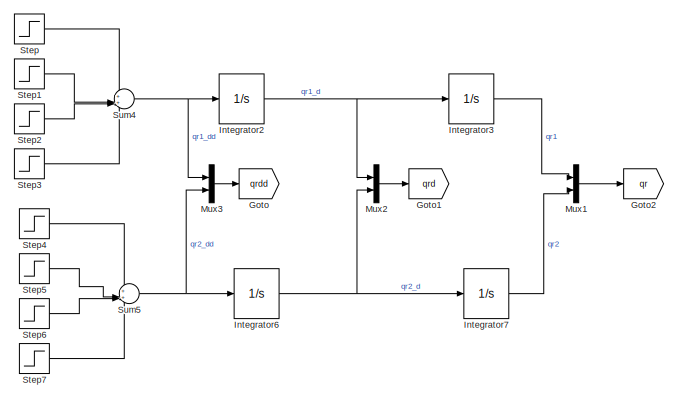
[diagram: root canvas - part 1/2, middle left region]
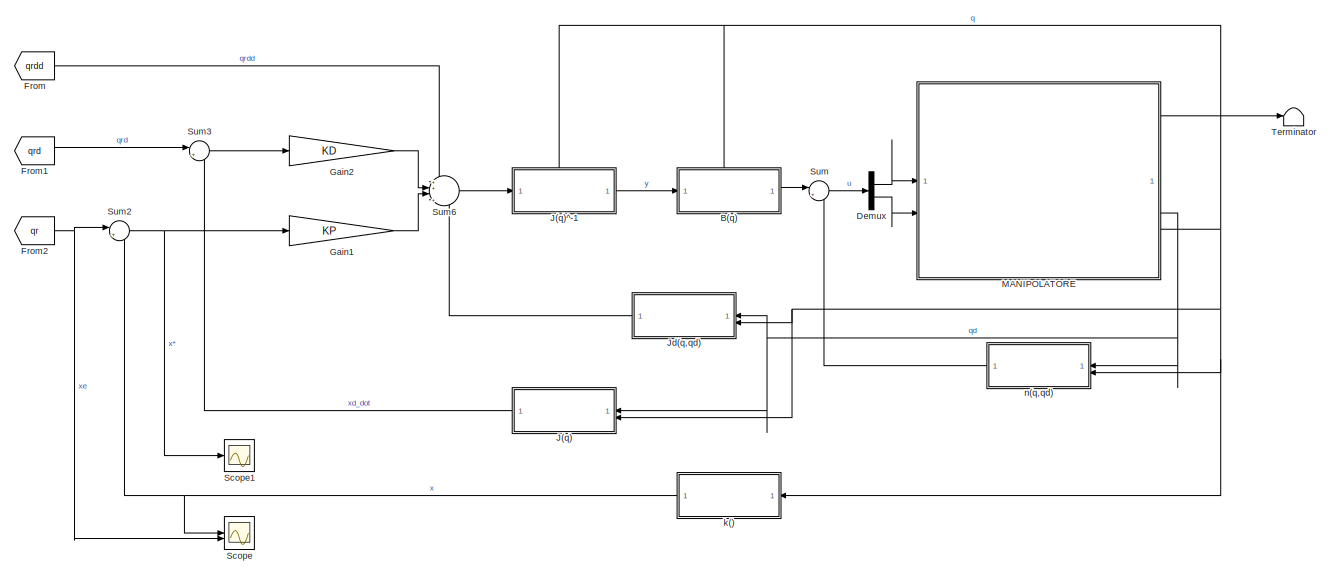
[diagram: root canvas - part 2/2, right side, full height]
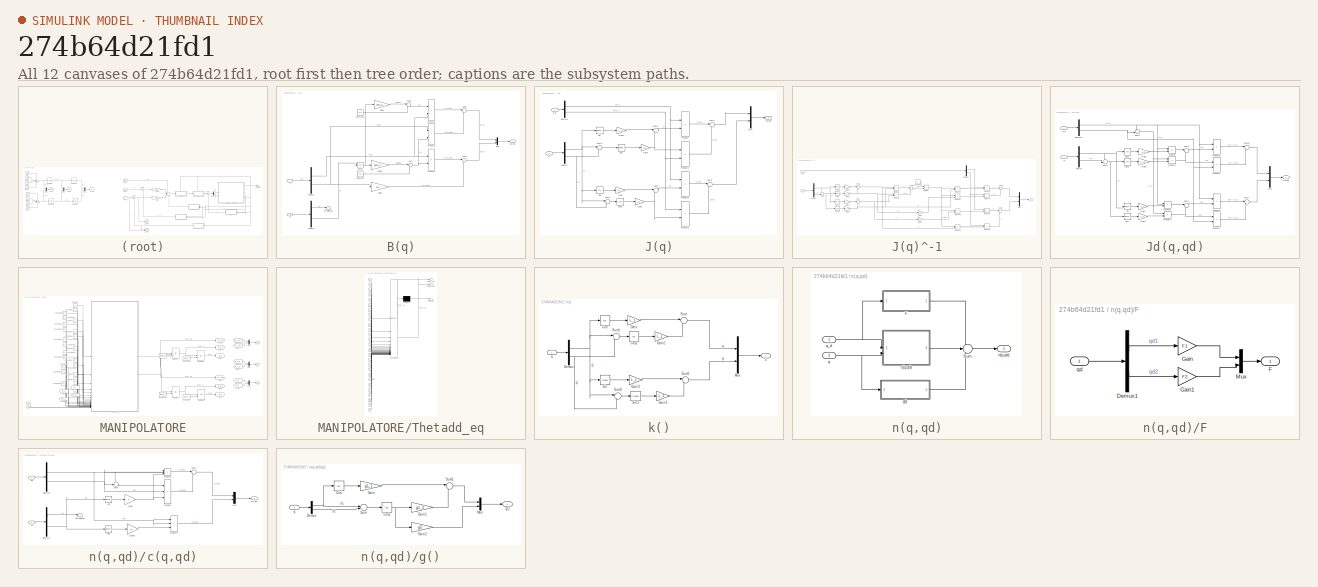
[diagram: thumbnail index - all 12 canvases of the model, root first then tree order]
MODEL slx_274b64d21fd1
KIND model
CONFIG AbsTol = auto
CONFIG EnableMultiTasking = off
CONFIG FixedStep = auto
CONFIG MaxStep = auto
CONFIG MinStep = auto
CONFIG RelTol = 1e-3
CONFIG SampleTimeConstraint = Unconstrained
CONFIG SolverName = VariableStepAuto
CONFIG StartTime = 0.0
CONFIG StopTime = 10.0
BLOCK [SubSystem] B(q)
  PortSchema = {"entries":[{"content":{"sides":[{"content":{"connectorIds":["In1"]},"type":"ConnectorPlacement.EquallySpacedRectSide","uuid":"bbc9a513-2d37-434b-b23e-4dc451bcd22f"},{"content":{"connectorIds":["Out1"],"side":"RIGHT"},"type":"ConnectorPlacement.EquallySpacedRectSide","uuid":"d2460926-2f38-42cc-bb12-745d42388ece"},{"content":{"connectorIds":["In2"],"side":"TOP"},"type":"ConnectorPlacement.EquallySp...<+245ch>
BLOCK [Constant] B(q)/Constant
  Value = b12
BLOCK [Constant] B(q)/Constant1
  Value = b11
BLOCK [Trigonometry] B(q)/Cos4
  Operator = cos
BLOCK [Demux] B(q)/Demux1
  Outputs = 2
BLOCK [Demux] B(q)/Demux4
  Outputs = 2
BLOCK [Gain] B(q)/Gain1
  Gain = b22
BLOCK [Gain] B(q)/Gain16
  Gain = delta_b12
BLOCK [Gain] B(q)/Gain4
  Gain = delta_b11
BLOCK [Mux] B(q)/Mux
  DisplayOption = bar
  Inputs = 2
BLOCK [Outport] B(q)/Output
BLOCK [Product] B(q)/Product1
BLOCK [Product] B(q)/Product2
BLOCK [Product] B(q)/Product3
BLOCK [Sum] B(q)/Sum
  Inputs = |++
BLOCK [Sum] B(q)/Sum1
  Inputs = |++
BLOCK [Sum] B(q)/Sum3
  Inputs = |++
BLOCK [Sum] B(q)/Sum6
  Inputs = |++
BLOCK [Terminator] B(q)/Terminator
BLOCK [Inport] B(q)/q
  Port = 2
BLOCK [Inport] B(q)/y
BLOCK [Demux] Demux
  Outputs = 2
BLOCK [From] From
  GotoTag = qrdd
BLOCK [From] From1
  GotoTag = qrd
BLOCK [From] From2
  GotoTag = qr
BLOCK [Gain] Gain1
  Gain = KP
  Multiplication = Matrix(K*u) (u vector)
BLOCK [Gain] Gain2
  Gain = KD
  Multiplication = Matrix(K*u) (u vector)
BLOCK [Goto] Goto
  GotoTag = qrdd
BLOCK [Goto] Goto1
  GotoTag = qrd
BLOCK [Goto] Goto2
  GotoTag = qr
BLOCK [Integrator] Integrator2
BLOCK [Integrator] Integrator3
BLOCK [Integrator] Integrator6
BLOCK [Integrator] Integrator7
BLOCK [SubSystem] J(q)
BLOCK [Trigonometry] J(q)/Cos
  Operator = cos
BLOCK [Trigonometry] J(q)/Cos1
  Operator = cos
BLOCK [Demux] J(q)/Demux
  Outputs = 2
BLOCK [Demux] J(q)/Demux1
  Outputs = 2
BLOCK [Gain] J(q)/Gain
  Gain = L_1
BLOCK [Gain] J(q)/Gain1
  Gain = L_2
BLOCK [Gain] J(q)/Gain2
  Gain = -L_1
BLOCK [Gain] J(q)/Gain3
  Gain = -L_2
BLOCK [Mux] J(q)/Mux
  DisplayOption = bar
  Inputs = 2
BLOCK [Product] J(q)/Product
BLOCK [Product] J(q)/Product1
BLOCK [Product] J(q)/Product2
BLOCK [Product] J(q)/Product3
BLOCK [Trigonometry] J(q)/Sin
BLOCK [Trigonometry] J(q)/Sin1
BLOCK [Sum] J(q)/Sum
  Inputs = |++
BLOCK [Sum] J(q)/Sum1
  Inputs = |++
BLOCK [Sum] J(q)/Sum2
  Inputs = |++
BLOCK [Sum] J(q)/Sum3
  Inputs = |++
BLOCK [Sum] J(q)/Sum4
  Inputs = |++
BLOCK [Sum] J(q)/Sum5
  Inputs = |++
BLOCK [Inport] J(q)/q
  Port = 2
BLOCK [Inport] J(q)/q_d
BLOCK [Outport] J(q)/xd_dot
BLOCK [SubSystem] J(q)^-1
  PortSchema = {"entries":[{"content":{"sides":[{"content":{"connectorIds":["In1"]},"type":"ConnectorPlacement.EquallySpacedRectSide","uuid":"515bc5bd-4876-4961-a034-aea24abec9fd"},{"content":{"connectorIds":["Out1"],"side":"RIGHT"},"type":"ConnectorPlacement.EquallySpacedRectSide","uuid":"1d0a2c9d-18e4-4c5e-8091-1d13b4417a11"},{"content":{"connectorIds":["In2"],"side":"TOP"},"type":"ConnectorPlacement.EquallySp...<+245ch>
BLOCK [Constant] J(q)^-1/Constant
BLOCK [Trigonometry] J(q)^-1/Cos1
  Operator = cos
BLOCK [Trigonometry] J(q)^-1/Cos4
  Operator = cos
BLOCK [Demux] J(q)^-1/Demux
  Outputs = 2
BLOCK [Demux] J(q)^-1/Demux1
  Outputs = 2
BLOCK [Product] J(q)^-1/Divide
  Inputs = */
BLOCK [Gain] J(q)^-1/Gain
  Gain = -1
BLOCK [Gain] J(q)^-1/Gain1
  Gain = -1
BLOCK [Gain] J(q)^-1/Gain5
  Gain = -L_1
BLOCK [Gain] J(q)^-1/Gain6
  Gain = -L_2
BLOCK [Gain] J(q)^-1/Gain7
  Gain = L_1
BLOCK [Gain] J(q)^-1/Gain8
  Gain = L_2
BLOCK [Inport] J(q)^-1/Input
BLOCK [Mux] J(q)^-1/Mux
  DisplayOption = bar
  Inputs = 2
BLOCK [Product] J(q)^-1/Product
BLOCK [Product] J(q)^-1/Product1
BLOCK [Product] J(q)^-1/Product2
BLOCK [Product] J(q)^-1/Product3
BLOCK [Product] J(q)^-1/Product4
BLOCK [Product] J(q)^-1/Product5
BLOCK [Product] J(q)^-1/Product6
BLOCK [Product] J(q)^-1/Product7
BLOCK [Product] J(q)^-1/Product8
BLOCK [Product] J(q)^-1/Product9
BLOCK [Trigonometry] J(q)^-1/Sin2
BLOCK [Trigonometry] J(q)^-1/Sin3
BLOCK [Sum] J(q)^-1/Sum
  Inputs = |++
BLOCK [Sum] J(q)^-1/Sum1
  Inputs = |++
BLOCK [Sum] J(q)^-1/Sum2
  Inputs = |+-
BLOCK [Sum] J(q)^-1/Sum3
  Inputs = ++|
BLOCK [Sum] J(q)^-1/Sum4
  Inputs = |++
BLOCK [Sum] J(q)^-1/Sum5
  Inputs = |++
BLOCK [Inport] J(q)^-1/q
  Port = 2
BLOCK [Outport] J(q)^-1/y
BLOCK [SubSystem] Jd(q,qd)
BLOCK [Trigonometry] Jd(q,qd)/Cos2
  Operator = cos
BLOCK [Trigonometry] Jd(q,qd)/Cos3
  Operator = cos
BLOCK [Demux] Jd(q,qd)/Demux
  Outputs = 2
BLOCK [Demux] Jd(q,qd)/Demux1
  Outputs = 2
BLOCK [Gain] Jd(q,qd)/Gain1
  Gain = -L_1
BLOCK [Gain] Jd(q,qd)/Gain2
  Gain = -L_1
BLOCK [Gain] Jd(q,qd)/Gain3
  Gain = -L_2
BLOCK [Gain] Jd(q,qd)/Gain4
  Gain = -L_2
BLOCK [Mux] Jd(q,qd)/Mux
  DisplayOption = bar
  Inputs = 2
BLOCK [Outport] Jd(q,qd)/Output
BLOCK [Product] Jd(q,qd)/Product
BLOCK [Product] Jd(q,qd)/Product1
BLOCK [Product] Jd(q,qd)/Product2
BLOCK [Product] Jd(q,qd)/Product3
BLOCK [Product] Jd(q,qd)/Product4
BLOCK [Product] Jd(q,qd)/Product5
BLOCK [Product] Jd(q,qd)/Product6
BLOCK [Product] Jd(q,qd)/Product7
BLOCK [Trigonometry] Jd(q,qd)/Sin
BLOCK [Trigonometry] Jd(q,qd)/Sin1
BLOCK [Sum] Jd(q,qd)/Sum1
  Inputs = |++
BLOCK [Sum] Jd(q,qd)/Sum2
  Inputs = |++
BLOCK [Sum] Jd(q,qd)/Sum3
  Inputs = ++|
BLOCK [Sum] Jd(q,qd)/Sum6
  Inputs = ++|
BLOCK [Sum] Jd(q,qd)/Sum7
  Inputs = |++
BLOCK [Sum] Jd(q,qd)/Sum8
  Inputs = |++
BLOCK [Inport] Jd(q,qd)/q
  Port = 2
BLOCK [Inport] Jd(q,qd)/q_d
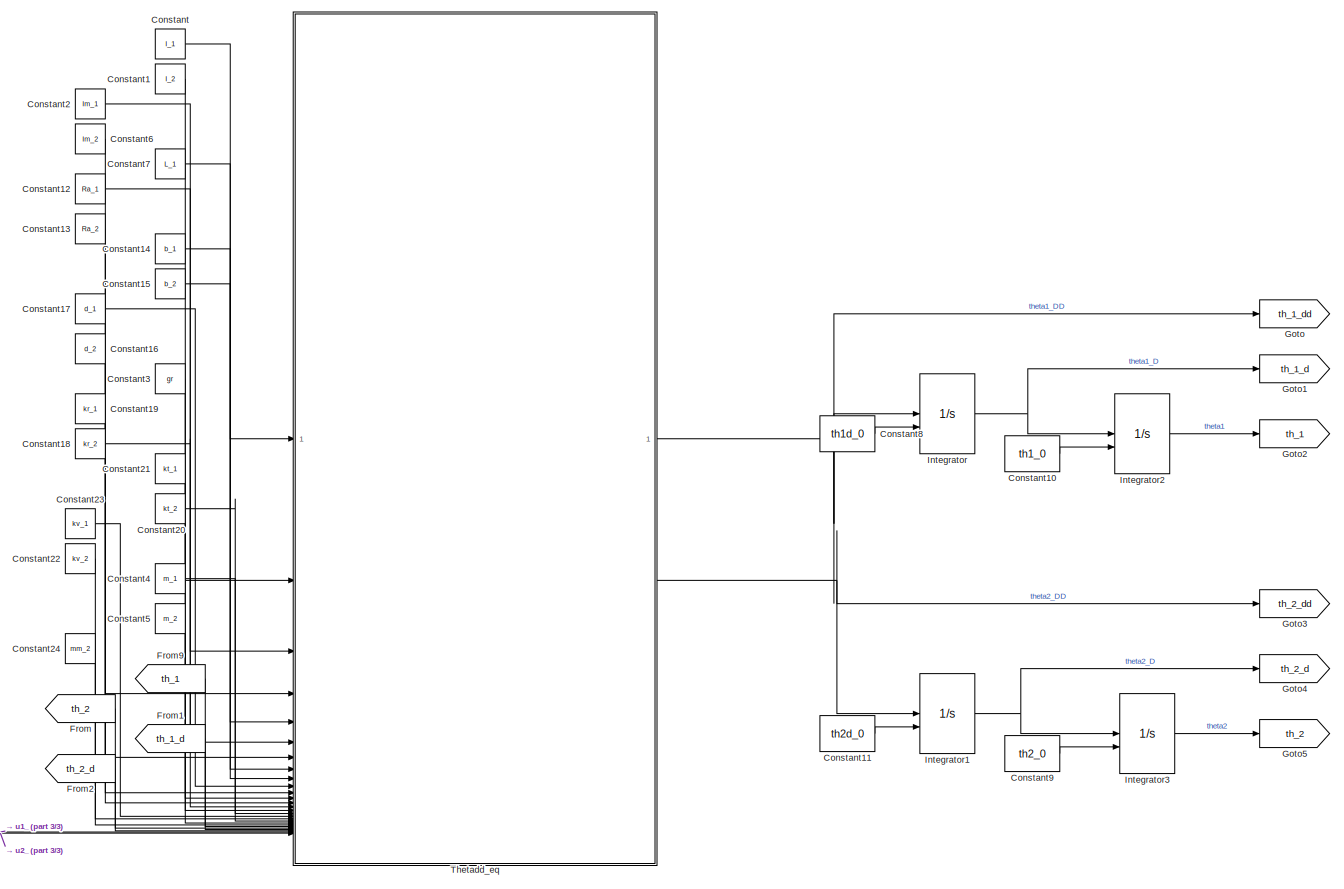
[diagram: MANIPOLATORE - part 1/3, most of the canvas]
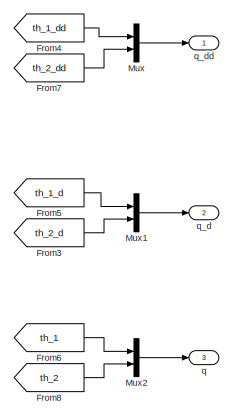
[diagram: MANIPOLATORE - part 2/3, middle right region]
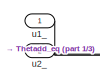
[diagram: MANIPOLATORE - part 3/3, bottom left region]
BLOCK [SubSystem] MANIPOLATORE
BLOCK [Constant] MANIPOLATORE/Constant
  Value = I_1
BLOCK [Constant] MANIPOLATORE/Constant1
  Value = I_2
BLOCK [Constant] MANIPOLATORE/Constant10
  Value = th1_0
BLOCK [Constant] MANIPOLATORE/Constant11
  Value = th2d_0
BLOCK [Constant] MANIPOLATORE/Constant12
  Value = Ra_1
BLOCK [Constant] MANIPOLATORE/Constant13
  Value = Ra_2
BLOCK [Constant] MANIPOLATORE/Constant14
  Value = b_1
BLOCK [Constant] MANIPOLATORE/Constant15
  Value = b_2
BLOCK [Constant] MANIPOLATORE/Constant16
  Value = d_2
BLOCK [Constant] MANIPOLATORE/Constant17
  Value = d_1
BLOCK [Constant] MANIPOLATORE/Constant18
  Value = kr_2
BLOCK [Constant] MANIPOLATORE/Constant19
  Value = kr_1
BLOCK [Constant] MANIPOLATORE/Constant2
  Value = Im_1
BLOCK [Constant] MANIPOLATORE/Constant20
  Value = kt_2
BLOCK [Constant] MANIPOLATORE/Constant21
  Value = kt_1
BLOCK [Constant] MANIPOLATORE/Constant22
  Value = kv_2
BLOCK [Constant] MANIPOLATORE/Constant23
  Value = kv_1
BLOCK [Constant] MANIPOLATORE/Constant24
  Value = mm_2
BLOCK [Constant] MANIPOLATORE/Constant3
  Value = gr
BLOCK [Constant] MANIPOLATORE/Constant4
  Value = m_1
BLOCK [Constant] MANIPOLATORE/Constant5
  Value = m_2
BLOCK [Constant] MANIPOLATORE/Constant6
  Value = Im_2
BLOCK [Constant] MANIPOLATORE/Constant7
  Value = L_1
BLOCK [Constant] MANIPOLATORE/Constant8
  Value = th1d_0
BLOCK [Constant] MANIPOLATORE/Constant9
  Value = th2_0
BLOCK [From] MANIPOLATORE/From
  GotoTag = th_2
BLOCK [From] MANIPOLATORE/From1
  GotoTag = th_1_d
BLOCK [From] MANIPOLATORE/From2
  GotoTag = th_2_d
BLOCK [From] MANIPOLATORE/From3
  GotoTag = th_2_d
BLOCK [From] MANIPOLATORE/From4
  GotoTag = th_1_dd
BLOCK [From] MANIPOLATORE/From5
  GotoTag = th_1_d
BLOCK [From] MANIPOLATORE/From6
  GotoTag = th_1
BLOCK [From] MANIPOLATORE/From7
  GotoTag = th_2_dd
BLOCK [From] MANIPOLATORE/From8
  GotoTag = th_2
BLOCK [From] MANIPOLATORE/From9
  GotoTag = th_1
BLOCK [Goto] MANIPOLATORE/Goto
  GotoTag = th_1_dd
BLOCK [Goto] MANIPOLATORE/Goto1
  GotoTag = th_1_d
BLOCK [Goto] MANIPOLATORE/Goto2
  GotoTag = th_1
BLOCK [Goto] MANIPOLATORE/Goto3
  GotoTag = th_2_dd
BLOCK [Goto] MANIPOLATORE/Goto4
  GotoTag = th_2_d
BLOCK [Goto] MANIPOLATORE/Goto5
  GotoTag = th_2
BLOCK [Integrator] MANIPOLATORE/Integrator
  InitialConditionSource = external
BLOCK [Integrator] MANIPOLATORE/Integrator1
  InitialConditionSource = external
BLOCK [Integrator] MANIPOLATORE/Integrator2
  InitialConditionSource = external
BLOCK [Integrator] MANIPOLATORE/Integrator3
  InitialConditionSource = external
BLOCK [Mux] MANIPOLATORE/Mux
  DisplayOption = bar
  Inputs = 2
BLOCK [Mux] MANIPOLATORE/Mux1
  DisplayOption = bar
  Inputs = 2
BLOCK [Mux] MANIPOLATORE/Mux2
  DisplayOption = bar
  Inputs = 2
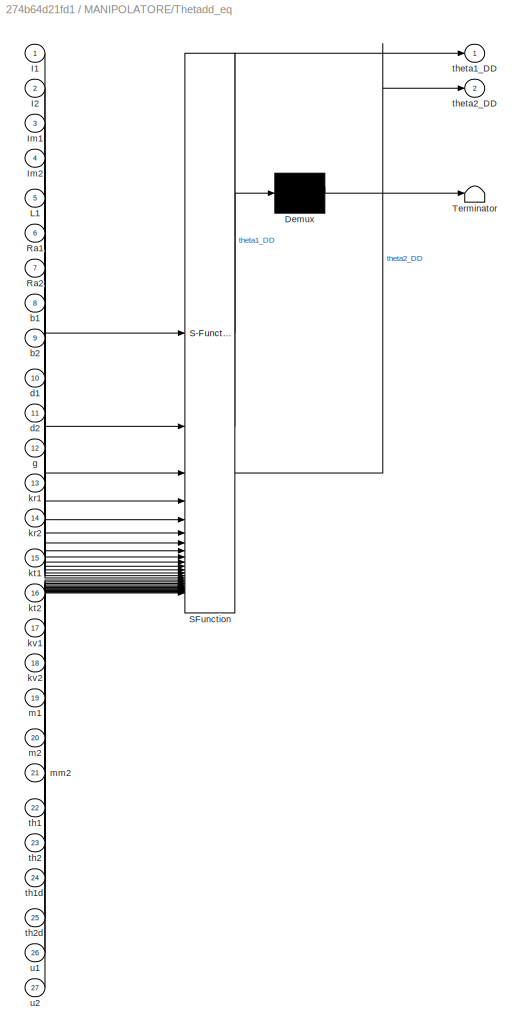
BLOCK [SubSystem] MANIPOLATORE/Thetadd_eq
  ErrorFcn = Stateflow.Translate.translate
  PermitHierarchicalResolution = ExplicitOnly
  SFBlockType = MATLAB Function
  TreatAsAtomicUnit = on
BLOCK [Demux] MANIPOLATORE/Thetadd_eq/ Demux 
  Outputs = 1
BLOCK [S-Function] MANIPOLATORE/Thetadd_eq/ SFunction 
  EnableBusSupport = on
  FunctionName = sf_sfun
  PortCounts = [27 3]
  SFcnIsStateOwnerBlock = off
  SFunctionDeploymentMode = off
  Tag = Stateflow S-Function 2
BLOCK [Terminator] MANIPOLATORE/Thetadd_eq/ Terminator 
BLOCK [Inport] MANIPOLATORE/Thetadd_eq/I1
BLOCK [Inport] MANIPOLATORE/Thetadd_eq/I2
  Port = 2
BLOCK [Inport] MANIPOLATORE/Thetadd_eq/Im1
  Port = 3
BLOCK [Inport] MANIPOLATORE/Thetadd_eq/Im2
  Port = 4
BLOCK [Inport] MANIPOLATORE/Thetadd_eq/L1
  Port = 5
BLOCK [Inport] MANIPOLATORE/Thetadd_eq/Ra1
  Port = 6
BLOCK [Inport] MANIPOLATORE/Thetadd_eq/Ra2
  Port = 7
BLOCK [Inport] MANIPOLATORE/Thetadd_eq/b1
  Port = 8
BLOCK [Inport] MANIPOLATORE/Thetadd_eq/b2
  Port = 9
BLOCK [Inport] MANIPOLATORE/Thetadd_eq/d1
  Port = 10
BLOCK [Inport] MANIPOLATORE/Thetadd_eq/d2
  Port = 11
BLOCK [Inport] MANIPOLATORE/Thetadd_eq/g
  Port = 12
BLOCK [Inport] MANIPOLATORE/Thetadd_eq/kr1
  Port = 13
BLOCK [Inport] MANIPOLATORE/Thetadd_eq/kr2
  Port = 14
BLOCK [Inport] MANIPOLATORE/Thetadd_eq/kt1
  Port = 15
BLOCK [Inport] MANIPOLATORE/Thetadd_eq/kt2
  Port = 16
BLOCK [Inport] MANIPOLATORE/Thetadd_eq/kv1
  Port = 17
BLOCK [Inport] MANIPOLATORE/Thetadd_eq/kv2
  Port = 18
BLOCK [Inport] MANIPOLATORE/Thetadd_eq/m1
  Port = 19
BLOCK [Inport] MANIPOLATORE/Thetadd_eq/m2
  Port = 20
BLOCK [Inport] MANIPOLATORE/Thetadd_eq/mm2
  Port = 21
BLOCK [Inport] MANIPOLATORE/Thetadd_eq/th1
  Port = 22
BLOCK [Inport] MANIPOLATORE/Thetadd_eq/th1d
  Port = 24
BLOCK [Inport] MANIPOLATORE/Thetadd_eq/th2
  Port = 23
BLOCK [Inport] MANIPOLATORE/Thetadd_eq/th2d
  Port = 25
BLOCK [Outport] MANIPOLATORE/Thetadd_eq/theta1_DD
BLOCK [Outport] MANIPOLATORE/Thetadd_eq/theta2_DD
  Port = 2
BLOCK [Inport] MANIPOLATORE/Thetadd_eq/u1
  Port = 26
BLOCK [Inport] MANIPOLATORE/Thetadd_eq/u2
  Port = 27
BLOCK [Outport] MANIPOLATORE/q
  Port = 3
BLOCK [Outport] MANIPOLATORE/q_d
  Port = 2
BLOCK [Outport] MANIPOLATORE/q_dd
BLOCK [Inport] MANIPOLATORE/u1_
BLOCK [Inport] MANIPOLATORE/u2_
  Port = 2
BLOCK [Mux] Mux1
  DisplayOption = bar
  Inputs = 2
BLOCK [Mux] Mux2
  DisplayOption = bar
  Inputs = 2
BLOCK [Mux] Mux3
  DisplayOption = bar
  Inputs = 2
BLOCK [Scope] Scope
  Floating = off
  NumInputPorts = 2
  ScopeSpecificationString = Simulink.scopes.TimeScopeBlockCfg('CurrentConfiguration', extmgr.ConfigurationSet(extmgr.Configuration('Core','General UI',true),extmgr.Configuration('Core','Source UI',true),extmgr.Configuration('Sources','WiredSimulink',true,'DataLoggingVariableName','ScopeData1'),extmgr.Configuration('Visuals','Time Domain',true,'SerializedDisplays',{struct('MinYLimReal','-0.18324','MaxYLimReal','1.64917','YLab...<+1499ch>
BLOCK [Scope] Scope1
  Floating = off
  NumInputPorts = 1
  ScopeSpecificationString = Simulink.scopes.TimeScopeBlockCfg('CurrentConfiguration', extmgr.ConfigurationSet(extmgr.Configuration('Core','General UI',true),extmgr.Configuration('Core','Source UI',true),extmgr.Configuration('Sources','WiredSimulink',true,'DataLoggingVariableName','ScopeData2'),extmgr.Configuration('Visuals','Time Domain',true,'SerializedDisplays',{struct('MinYLimReal','-1.67903','MaxYLimReal','0.452','YLabel...<+1394ch>
BLOCK [Step] Step
  After = qc_dd
  SampleTime = 0
  Time = 0
BLOCK [Step] Step1
  After = -qc_dd
  SampleTime = 0
  Time = tc
BLOCK [Step] Step2
  After = -qc_dd
  SampleTime = 0
  Time = tf-tc
BLOCK [Step] Step3
  After = qc_dd
  SampleTime = 0
  Time = tf
BLOCK [Step] Step4
  After = qc_dd
  SampleTime = 0
  Time = 0
BLOCK [Step] Step5
  After = -qc_dd
  SampleTime = 0
  Time = tc
BLOCK [Step] Step6
  After = -qc_dd
  SampleTime = 0
  Time = tf-tc
BLOCK [Step] Step7
  After = qc_dd
  SampleTime = 0
  Time = tf
BLOCK [Sum] Sum
  Inputs = |++
BLOCK [Sum] Sum2
  Inputs = |+-
BLOCK [Sum] Sum3
  Inputs = |+-
BLOCK [Sum] Sum4
  Inputs = 4
BLOCK [Sum] Sum5
  Inputs = 4
BLOCK [Sum] Sum6
  Inputs = ++|+-
BLOCK [Terminator] Terminator
BLOCK [SubSystem] k()
BLOCK [Trigonometry] k()/Cos
  Operator = cos
BLOCK [Trigonometry] k()/Cos1
  Operator = cos
BLOCK [Demux] k()/Demux
  Outputs = 2
BLOCK [Gain] k()/Gain
  Gain = L_1
BLOCK [Gain] k()/Gain1
  Gain = L_2
BLOCK [Gain] k()/Gain2
  Gain = L_1
BLOCK [Gain] k()/Gain3
  Gain = L_2
BLOCK [Mux] k()/Mux
  DisplayOption = bar
  Inputs = 2
BLOCK [Trigonometry] k()/Sin
BLOCK [Trigonometry] k()/Sin1
BLOCK [Sum] k()/Sum
  Inputs = |++
BLOCK [Sum] k()/Sum1
  Inputs = |++
BLOCK [Sum] k()/Sum2
  Inputs = |++
BLOCK [Sum] k()/Sum3
  Inputs = |++
BLOCK [Inport] k()/q
BLOCK [Outport] k()/x
BLOCK [SubSystem] n(q,qd)
BLOCK [SubSystem] n(q,qd)/F
  NameLocation = top
BLOCK [Demux] n(q,qd)/F/Demux1
  Outputs = 2
BLOCK [Outport] n(q,qd)/F/F
BLOCK [Gain] n(q,qd)/F/Gain
  Gain = F1
BLOCK [Gain] n(q,qd)/F/Gain1
  Gain = F2
BLOCK [Mux] n(q,qd)/F/Mux
  DisplayOption = bar
  Inputs = 2
BLOCK [Inport] n(q,qd)/F/qd
BLOCK [Sum] n(q,qd)/Sum
  Inputs = +++
BLOCK [SubSystem] n(q,qd)/c(q,qd)
  NameLocation = top
BLOCK [Demux] n(q,qd)/c(q,qd)/Demux1
  Outputs = 2
BLOCK [Demux] n(q,qd)/c(q,qd)/Demux3
  Outputs = 2
BLOCK [Gain] n(q,qd)/c(q,qd)/Gain15
  Gain = -h
BLOCK [Gain] n(q,qd)/c(q,qd)/Gain8
  Gain = h
BLOCK [Mux] n(q,qd)/c(q,qd)/Mux
  DisplayOption = bar
  Inputs = 2
BLOCK [Product] n(q,qd)/c(q,qd)/Product
  Inputs = 3
BLOCK [Product] n(q,qd)/c(q,qd)/Product1
  Inputs = 3
BLOCK [Product] n(q,qd)/c(q,qd)/Product4
  Inputs = 3
BLOCK [Trigonometry] n(q,qd)/c(q,qd)/Sin
BLOCK [Trigonometry] n(q,qd)/c(q,qd)/Sin1
BLOCK [Sum] n(q,qd)/c(q,qd)/Sum1
  Inputs = |++
BLOCK [Sum] n(q,qd)/c(q,qd)/Sum5
  Inputs = ++|
BLOCK [Terminator] n(q,qd)/c(q,qd)/Terminator
BLOCK [Outport] n(q,qd)/c(q,qd)/c(q,qd)
BLOCK [Inport] n(q,qd)/c(q,qd)/q
  Port = 2
BLOCK [Inport] n(q,qd)/c(q,qd)/qd
BLOCK [SubSystem] n(q,qd)/g()
  NameLocation = top
BLOCK [Trigonometry] n(q,qd)/g()/Cos
  Operator = cos
BLOCK [Trigonometry] n(q,qd)/g()/Cos1
  Operator = cos
BLOCK [Demux] n(q,qd)/g()/Demux
  Outputs = 2
BLOCK [Gain] n(q,qd)/g()/Gain
  Gain = g1_1
BLOCK [Gain] n(q,qd)/g()/Gain1
  Gain = g1_2
BLOCK [Gain] n(q,qd)/g()/Gain2
  Gain = g2
BLOCK [Mux] n(q,qd)/g()/Mux
  DisplayOption = bar
  Inputs = 2
BLOCK [Sum] n(q,qd)/g()/Sum
  Inputs = |++|
BLOCK [Sum] n(q,qd)/g()/Sum1
  Inputs = |++
BLOCK [Outport] n(q,qd)/g()/g()
BLOCK [Inport] n(q,qd)/g()/q
BLOCK [Outport] n(q,qd)/n(q,qd)
BLOCK [Inport] n(q,qd)/q
  Port = 2
BLOCK [Inport] n(q,qd)/q_d
LINE B(q)/Constant1:1 -> B(q)/Sum3:2
LINE B(q)/Constant:1 -> B(q)/Sum:2
NET B(q)/Cos4:1 -> B(q)/Gain16:1, B(q)/Gain4:1
LINE B(q)/Demux1:1 -> B(q)/Terminator:1
LINE B(q)/Demux1:2 -> B(q)/Cos4:1
NET B(q)/Demux4:1 -> B(q)/Product1:1, B(q)/Product3:2
NET B(q)/Demux4:2 -> B(q)/Gain1:1, B(q)/Product2:1
LINE B(q)/Gain16:1 -> B(q)/Sum:1
LINE B(q)/Gain1:1 -> B(q)/Sum1:2
LINE B(q)/Gain4:1 -> B(q)/Sum3:1
LINE B(q)/Mux:1 -> B(q)/Output:1
LINE B(q)/Product1:1 -> B(q)/Sum1:1
LINE B(q)/Product2:1 -> B(q)/Sum6:2
LINE B(q)/Product3:1 -> B(q)/Sum6:1
LINE B(q)/Sum1:1 -> B(q)/Mux:2
LINE B(q)/Sum3:1 -> B(q)/Product3:1
LINE B(q)/Sum6:1 -> B(q)/Mux:1
NET B(q)/Sum:1 -> B(q)/Product1:2, B(q)/Product2:2
LINE B(q)/q:1 -> B(q)/Demux1:1
LINE B(q)/y:1 -> B(q)/Demux4:1
LINE B(q):1 -> Sum:1
LINE Demux:1 -> MANIPOLATORE:1
LINE Demux:2 -> MANIPOLATORE:2
LINE From1:1 -> Sum3:1
NET From2:1 -> Scope:2, Sum2:1
LINE From:1 -> Sum6:1
LINE Gain1:1 -> Sum6:3
LINE Gain2:1 -> Sum6:2
NET Integrator2:1 -> Integrator3:1, Mux2:1
LINE Integrator3:1 -> Mux1:1
NET Integrator6:1 -> Integrator7:1, Mux2:2
LINE Integrator7:1 -> Mux1:2
LINE J(q)/Cos1:1 -> J(q)/Gain1:1
LINE J(q)/Cos:1 -> J(q)/Gain:1
NET J(q)/Demux1:1 -> J(q)/Product2:1, J(q)/Product:1
NET J(q)/Demux1:2 -> J(q)/Product1:2, J(q)/Product3:1
NET J(q)/Demux:1 -> J(q)/Cos:1, J(q)/Sin:1, J(q)/Sum1:1, J(q)/Sum3:1
NET J(q)/Demux:2 -> J(q)/Sum1:2, J(q)/Sum3:2
NET J(q)/Gain1:1 -> J(q)/Product3:2, J(q)/Sum:2
LINE J(q)/Gain2:1 -> J(q)/Sum2:1
NET J(q)/Gain3:1 -> J(q)/Product1:1, J(q)/Sum2:2
LINE J(q)/Gain:1 -> J(q)/Sum:1
LINE J(q)/Mux:1 -> J(q)/xd_dot:1
LINE J(q)/Product1:1 -> J(q)/Sum4:2
LINE J(q)/Product2:1 -> J(q)/Sum5:1
LINE J(q)/Product3:1 -> J(q)/Sum5:2
LINE J(q)/Product:1 -> J(q)/Sum4:1
LINE J(q)/Sin1:1 -> J(q)/Gain3:1
LINE J(q)/Sin:1 -> J(q)/Gain2:1
LINE J(q)/Sum1:1 -> J(q)/Cos1:1
LINE J(q)/Sum2:1 -> J(q)/Product:2
LINE J(q)/Sum3:1 -> J(q)/Sin1:1
LINE J(q)/Sum4:1 -> J(q)/Mux:1
LINE J(q)/Sum5:1 -> J(q)/Mux:2
LINE J(q)/Sum:1 -> J(q)/Product2:2
LINE J(q)/q:1 -> J(q)/Demux:1
LINE J(q)/q_d:1 -> J(q)/Demux1:1
LINE J(q):1 -> Sum3:2
LINE J(q)^-1/Constant:1 -> J(q)^-1/Divide:1
LINE J(q)^-1/Cos1:1 -> J(q)^-1/Gain7:1
LINE J(q)^-1/Cos4:1 -> J(q)^-1/Gain8:1
NET J(q)^-1/Demux1:1 -> J(q)^-1/Product6:1, J(q)^-1/Product8:1
NET J(q)^-1/Demux1:2 -> J(q)^-1/Product7:1, J(q)^-1/Product9:1
NET J(q)^-1/Demux:1 -> J(q)^-1/Cos1:1, J(q)^-1/Sin3:1, J(q)^-1/Sum3:1
LINE J(q)^-1/Demux:2 -> J(q)^-1/Sum3:2
NET J(q)^-1/Divide:1 -> J(q)^-1/Product2:1, J(q)^-1/Product3:1, J(q)^-1/Product4:1, J(q)^-1/Product5:1
LINE J(q)^-1/Gain1:1 -> J(q)^-1/Product5:2
LINE J(q)^-1/Gain5:1 -> J(q)^-1/Sum1:1
NET J(q)^-1/Gain6:1 -> J(q)^-1/Gain:1, J(q)^-1/Product1:1, J(q)^-1/Sum1:2
LINE J(q)^-1/Gain7:1 -> J(q)^-1/Sum:1
NET J(q)^-1/Gain8:1 -> J(q)^-1/Product2:2, J(q)^-1/Product:2, J(q)^-1/Sum:2
LINE J(q)^-1/Gain:1 -> J(q)^-1/Product4:2
LINE J(q)^-1/Input:1 -> J(q)^-1/Demux1:1
LINE J(q)^-1/Mux:1 -> J(q)^-1/y:1
LINE J(q)^-1/Product1:1 -> J(q)^-1/Sum2:2
LINE J(q)^-1/Product2:1 -> J(q)^-1/Product6:2
LINE J(q)^-1/Product3:1 -> J(q)^-1/Product9:2
LINE J(q)^-1/Product4:1 -> J(q)^-1/Product7:2
LINE J(q)^-1/Product5:1 -> J(q)^-1/Product8:2
LINE J(q)^-1/Product6:1 -> J(q)^-1/Sum4:1
LINE J(q)^-1/Product7:1 -> J(q)^-1/Sum4:2
LINE J(q)^-1/Product8:1 -> J(q)^-1/Sum5:1
LINE J(q)^-1/Product9:1 -> J(q)^-1/Sum5:2
LINE J(q)^-1/Product:1 -> J(q)^-1/Sum2:1
LINE J(q)^-1/Sin2:1 -> J(q)^-1/Gain6:1
LINE J(q)^-1/Sin3:1 -> J(q)^-1/Gain5:1
NET J(q)^-1/Sum1:1 -> J(q)^-1/Product3:2, J(q)^-1/Product:1
LINE J(q)^-1/Sum2:1 -> J(q)^-1/Divide:2
NET J(q)^-1/Sum3:1 -> J(q)^-1/Cos4:1, J(q)^-1/Sin2:1
LINE J(q)^-1/Sum4:1 -> J(q)^-1/Mux:1
LINE J(q)^-1/Sum5:1 -> J(q)^-1/Mux:2
NET J(q)^-1/Sum:1 -> J(q)^-1/Gain1:1, J(q)^-1/Product1:2
LINE J(q)^-1/q:1 -> J(q)^-1/Demux:1
LINE J(q)^-1:1 -> B(q):1
LINE Jd(q,qd)/Cos2:1 -> Jd(q,qd)/Gain2:1
LINE Jd(q,qd)/Cos3:1 -> Jd(q,qd)/Gain3:1
NET Jd(q,qd)/Demux1:1 -> Jd(q,qd)/Product1:1, Jd(q,qd)/Product3:1, Jd(q,qd)/Product5:1, Jd(q,qd)/Product:1, Jd(q,qd)/Sum6:1
NET Jd(q,qd)/Demux1:2 -> Jd(q,qd)/Product6:2, Jd(q,qd)/Product7:2, Jd(q,qd)/Sum6:2
NET Jd(q,qd)/Demux:1 -> Jd(q,qd)/Cos2:1, Jd(q,qd)/Sin:1, Jd(q,qd)/Sum3:1
LINE Jd(q,qd)/Demux:2 -> Jd(q,qd)/Sum3:2
LINE Jd(q,qd)/Gain1:1 -> Jd(q,qd)/Product1:2
LINE Jd(q,qd)/Gain2:1 -> Jd(q,qd)/Product:2
LINE Jd(q,qd)/Gain3:1 -> Jd(q,qd)/Product4:2
LINE Jd(q,qd)/Gain4:1 -> Jd(q,qd)/Product2:2
LINE Jd(q,qd)/Mux:1 -> Jd(q,qd)/Output:1
LINE Jd(q,qd)/Product1:1 -> Jd(q,qd)/Sum1:1
NET Jd(q,qd)/Product2:1 -> Jd(q,qd)/Product7:1, Jd(q,qd)/Sum1:2
LINE Jd(q,qd)/Product3:1 -> Jd(q,qd)/Sum7:1
NET Jd(q,qd)/Product4:1 -> Jd(q,qd)/Product6:1, Jd(q,qd)/Sum2:2
LINE Jd(q,qd)/Product5:1 -> Jd(q,qd)/Sum8:1
LINE Jd(q,qd)/Product6:1 -> Jd(q,qd)/Sum8:2
LINE Jd(q,qd)/Product7:1 -> Jd(q,qd)/Sum7:2
LINE Jd(q,qd)/Product:1 -> Jd(q,qd)/Sum2:1
LINE Jd(q,qd)/Sin1:1 -> Jd(q,qd)/Gain4:1
LINE Jd(q,qd)/Sin:1 -> Jd(q,qd)/Gain1:1
LINE Jd(q,qd)/Sum1:1 -> Jd(q,qd)/Product3:2
LINE Jd(q,qd)/Sum2:1 -> Jd(q,qd)/Product5:2
NET Jd(q,qd)/Sum3:1 -> Jd(q,qd)/Cos3:1, Jd(q,qd)/Sin1:1
NET Jd(q,qd)/Sum6:1 -> Jd(q,qd)/Product2:1, Jd(q,qd)/Product4:1
LINE Jd(q,qd)/Sum7:1 -> Jd(q,qd)/Mux:2
LINE Jd(q,qd)/Sum8:1 -> Jd(q,qd)/Mux:1
LINE Jd(q,qd)/q:1 -> Jd(q,qd)/Demux:1
LINE Jd(q,qd)/q_d:1 -> Jd(q,qd)/Demux1:1
LINE Jd(q,qd):1 -> Sum6:4
LINE MANIPOLATORE/Constant10:1 -> MANIPOLATORE/Integrator2:2
LINE MANIPOLATORE/Constant11:1 -> MANIPOLATORE/Integrator1:2
LINE MANIPOLATORE/Constant12:1 -> MANIPOLATORE/Thetadd_eq:6
LINE MANIPOLATORE/Constant13:1 -> MANIPOLATORE/Thetadd_eq:7
LINE MANIPOLATORE/Constant14:1 -> MANIPOLATORE/Thetadd_eq:8
LINE MANIPOLATORE/Constant15:1 -> MANIPOLATORE/Thetadd_eq:9
LINE MANIPOLATORE/Constant16:1 -> MANIPOLATORE/Thetadd_eq:11
LINE MANIPOLATORE/Constant17:1 -> MANIPOLATORE/Thetadd_eq:10
LINE MANIPOLATORE/Constant18:1 -> MANIPOLATORE/Thetadd_eq:14
LINE MANIPOLATORE/Constant19:1 -> MANIPOLATORE/Thetadd_eq:13
LINE MANIPOLATORE/Constant1:1 -> MANIPOLATORE/Thetadd_eq:2
LINE MANIPOLATORE/Constant20:1 -> MANIPOLATORE/Thetadd_eq:16
LINE MANIPOLATORE/Constant21:1 -> MANIPOLATORE/Thetadd_eq:15
LINE MANIPOLATORE/Constant22:1 -> MANIPOLATORE/Thetadd_eq:18
LINE MANIPOLATORE/Constant23:1 -> MANIPOLATORE/Thetadd_eq:17
LINE MANIPOLATORE/Constant24:1 -> MANIPOLATORE/Thetadd_eq:21
LINE MANIPOLATORE/Constant2:1 -> MANIPOLATORE/Thetadd_eq:3
LINE MANIPOLATORE/Constant3:1 -> MANIPOLATORE/Thetadd_eq:12
LINE MANIPOLATORE/Constant4:1 -> MANIPOLATORE/Thetadd_eq:19
LINE MANIPOLATORE/Constant5:1 -> MANIPOLATORE/Thetadd_eq:20
LINE MANIPOLATORE/Constant6:1 -> MANIPOLATORE/Thetadd_eq:4
LINE MANIPOLATORE/Constant7:1 -> MANIPOLATORE/Thetadd_eq:5
LINE MANIPOLATORE/Constant8:1 -> MANIPOLATORE/Integrator:2
LINE MANIPOLATORE/Constant9:1 -> MANIPOLATORE/Integrator3:2
LINE MANIPOLATORE/Constant:1 -> MANIPOLATORE/Thetadd_eq:1
LINE MANIPOLATORE/From1:1 -> MANIPOLATORE/Thetadd_eq:24
LINE MANIPOLATORE/From2:1 -> MANIPOLATORE/Thetadd_eq:25
LINE MANIPOLATORE/From3:1 -> MANIPOLATORE/Mux1:2
LINE MANIPOLATORE/From4:1 -> MANIPOLATORE/Mux:1
LINE MANIPOLATORE/From5:1 -> MANIPOLATORE/Mux1:1
LINE MANIPOLATORE/From6:1 -> MANIPOLATORE/Mux2:1
LINE MANIPOLATORE/From7:1 -> MANIPOLATORE/Mux:2
LINE MANIPOLATORE/From8:1 -> MANIPOLATORE/Mux2:2
LINE MANIPOLATORE/From9:1 -> MANIPOLATORE/Thetadd_eq:22
LINE MANIPOLATORE/From:1 -> MANIPOLATORE/Thetadd_eq:23
NET MANIPOLATORE/Integrator1:1 -> MANIPOLATORE/Goto4:1, MANIPOLATORE/Integrator3:1
LINE MANIPOLATORE/Integrator2:1 -> MANIPOLATORE/Goto2:1
LINE MANIPOLATORE/Integrator3:1 -> MANIPOLATORE/Goto5:1
NET MANIPOLATORE/Integrator:1 -> MANIPOLATORE/Goto1:1, MANIPOLATORE/Integrator2:1
LINE MANIPOLATORE/Mux1:1 -> MANIPOLATORE/q_d:1
LINE MANIPOLATORE/Mux2:1 -> MANIPOLATORE/q:1
LINE MANIPOLATORE/Mux:1 -> MANIPOLATORE/q_dd:1
NET MANIPOLATORE/Thetadd_eq:1 -> MANIPOLATORE/Goto:1, MANIPOLATORE/Integrator:1
NET MANIPOLATORE/Thetadd_eq:2 -> MANIPOLATORE/Goto3:1, MANIPOLATORE/Integrator1:1
LINE MANIPOLATORE/u1_:1 -> MANIPOLATORE/Thetadd_eq:26
LINE MANIPOLATORE/u2_:1 -> MANIPOLATORE/Thetadd_eq:27
LINE MANIPOLATORE:1 -> Terminator:1
NET MANIPOLATORE:2 -> J(q):1, Jd(q,qd):1, n(q,qd):1
NET MANIPOLATORE:3 -> B(q):2, J(q):2, J(q)^-1:2, Jd(q,qd):2, k():1, n(q,qd):2
LINE Mux1:1 -> Goto2:1
LINE Mux2:1 -> Goto1:1
LINE Mux3:1 -> Goto:1
LINE Step1:1 -> Sum4:2
LINE Step2:1 -> Sum4:3
LINE Step3:1 -> Sum4:4
LINE Step4:1 -> Sum5:1
LINE Step5:1 -> Sum5:2
LINE Step6:1 -> Sum5:3
LINE Step7:1 -> Sum5:4
LINE Step:1 -> Sum4:1
NET Sum2:1 -> Gain1:1, Scope1:1
LINE Sum3:1 -> Gain2:1
NET Sum4:1 -> Integrator2:1, Mux3:1
NET Sum5:1 -> Integrator6:1, Mux3:2
LINE Sum6:1 -> J(q)^-1:1
LINE Sum:1 -> Demux:1
LINE k()/Cos1:1 -> k()/Gain1:1
LINE k()/Cos:1 -> k()/Gain:1
NET k()/Demux:1 -> k()/Cos:1, k()/Sin:1, k()/Sum1:1, k()/Sum3:1
NET k()/Demux:2 -> k()/Sum1:2, k()/Sum3:2
LINE k()/Gain1:1 -> k()/Sum:2
LINE k()/Gain2:1 -> k()/Sum2:1
LINE k()/Gain3:1 -> k()/Sum2:2
LINE k()/Gain:1 -> k()/Sum:1
LINE k()/Mux:1 -> k()/x:1
LINE k()/Sin1:1 -> k()/Gain3:1
LINE k()/Sin:1 -> k()/Gain2:1
LINE k()/Sum1:1 -> k()/Cos1:1
LINE k()/Sum2:1 -> k()/Mux:2
LINE k()/Sum3:1 -> k()/Sin1:1
LINE k()/Sum:1 -> k()/Mux:1
LINE k()/q:1 -> k()/Demux:1
NET k():1 -> Scope:1, Sum2:2
LINE n(q,qd)/F/Demux1:1 -> n(q,qd)/F/Gain:1
LINE n(q,qd)/F/Demux1:2 -> n(q,qd)/F/Gain1:1
LINE n(q,qd)/F/Gain1:1 -> n(q,qd)/F/Mux:2
LINE n(q,qd)/F/Gain:1 -> n(q,qd)/F/Mux:1
LINE n(q,qd)/F/Mux:1 -> n(q,qd)/F/F:1
LINE n(q,qd)/F/qd:1 -> n(q,qd)/F/Demux1:1
LINE n(q,qd)/F:1 -> n(q,qd)/Sum:1
LINE n(q,qd)/Sum:1 -> n(q,qd)/n(q,qd):1
NET n(q,qd)/c(q,qd)/Demux1:1 -> n(q,qd)/c(q,qd)/Product1:1, n(q,qd)/c(q,qd)/Product4:1, n(q,qd)/c(q,qd)/Product4:2, n(q,qd)/c(q,qd)/Sum5:1
NET n(q,qd)/c(q,qd)/Demux1:2 -> n(q,qd)/c(q,qd)/Product1:2, n(q,qd)/c(q,qd)/Product:2, n(q,qd)/c(q,qd)/Sum5:2
LINE n(q,qd)/c(q,qd)/Demux3:1 -> n(q,qd)/c(q,qd)/Terminator:1
NET n(q,qd)/c(q,qd)/Demux3:2 -> n(q,qd)/c(q,qd)/Sin1:1, n(q,qd)/c(q,qd)/Sin:1
LINE n(q,qd)/c(q,qd)/Gain15:1 -> n(q,qd)/c(q,qd)/Product4:3
NET n(q,qd)/c(q,qd)/Gain8:1 -> n(q,qd)/c(q,qd)/Product1:3, n(q,qd)/c(q,qd)/Product:3
LINE n(q,qd)/c(q,qd)/Mux:1 -> n(q,qd)/c(q,qd)/c(q,qd):1
LINE n(q,qd)/c(q,qd)/Product1:1 -> n(q,qd)/c(q,qd)/Sum1:1
LINE n(q,qd)/c(q,qd)/Product4:1 -> n(q,qd)/c(q,qd)/Mux:2
LINE n(q,qd)/c(q,qd)/Product:1 -> n(q,qd)/c(q,qd)/Sum1:2
LINE n(q,qd)/c(q,qd)/Sin1:1 -> n(q,qd)/c(q,qd)/Gain15:1
LINE n(q,qd)/c(q,qd)/Sin:1 -> n(q,qd)/c(q,qd)/Gain8:1
LINE n(q,qd)/c(q,qd)/Sum1:1 -> n(q,qd)/c(q,qd)/Mux:1
LINE n(q,qd)/c(q,qd)/Sum5:1 -> n(q,qd)/c(q,qd)/Product:1
LINE n(q,qd)/c(q,qd)/q:1 -> n(q,qd)/c(q,qd)/Demux3:1
LINE n(q,qd)/c(q,qd)/qd:1 -> n(q,qd)/c(q,qd)/Demux1:1
LINE n(q,qd)/c(q,qd):1 -> n(q,qd)/Sum:2
NET n(q,qd)/g()/Cos1:1 -> n(q,qd)/g()/Gain1:1, n(q,qd)/g()/Gain2:1
LINE n(q,qd)/g()/Cos:1 -> n(q,qd)/g()/Gain:1
NET n(q,qd)/g()/Demux:1 -> n(q,qd)/g()/Cos:1, n(q,qd)/g()/Sum:1
LINE n(q,qd)/g()/Demux:2 -> n(q,qd)/g()/Sum:2
LINE n(q,qd)/g()/Gain1:1 -> n(q,qd)/g()/Sum1:2
LINE n(q,qd)/g()/Gain2:1 -> n(q,qd)/g()/Mux:2
LINE n(q,qd)/g()/Gain:1 -> n(q,qd)/g()/Sum1:1
LINE n(q,qd)/g()/Mux:1 -> n(q,qd)/g()/g():1
LINE n(q,qd)/g()/Sum1:1 -> n(q,qd)/g()/Mux:1
LINE n(q,qd)/g()/Sum:1 -> n(q,qd)/g()/Cos1:1
LINE n(q,qd)/g()/q:1 -> n(q,qd)/g()/Demux:1
LINE n(q,qd)/g():1 -> n(q,qd)/Sum:3
NET n(q,qd)/q:1 -> n(q,qd)/c(q,qd):2, n(q,qd)/g():1
NET n(q,qd)/q_d:1 -> n(q,qd)/F:1, n(q,qd)/c(q,qd):1
LINE n(q,qd):1 -> Sum:2
note: NET lines group one-source signal fan-out (src -> all destinations, sorted); 1:1 wires keep LINE
CHART MANIPOLATORE/Thetadd_eq states=1 transitions=1
  STATE_LABEL 'eML_blk_kernel()'
  STATE_LABEL 'SCRIPT:\nfunction [theta1_DD,theta2_DD] = Thetadd_eq(I1,I2,Im1,Im2,L1,Ra1,Ra2,b1,b2,d1,d2,g,kr1,kr2,kt1,kt2,kv1,kv2,m1,m2,mm2,th1,th2,th1d,th2d,u1,u2)\n%#codegen\n\n%    This function was generated by the Symbolic Math Toolbox version 23.2.\n%    04-Mar-2024 11:53:02\n\n% I1 = complex(I1);  % if required to enforce complex operations\n% I2 = complex(I2);  % if required to enforce complex operations\n% Im1 ...<+3608ch>'
CHART  states=0 transitions=0
